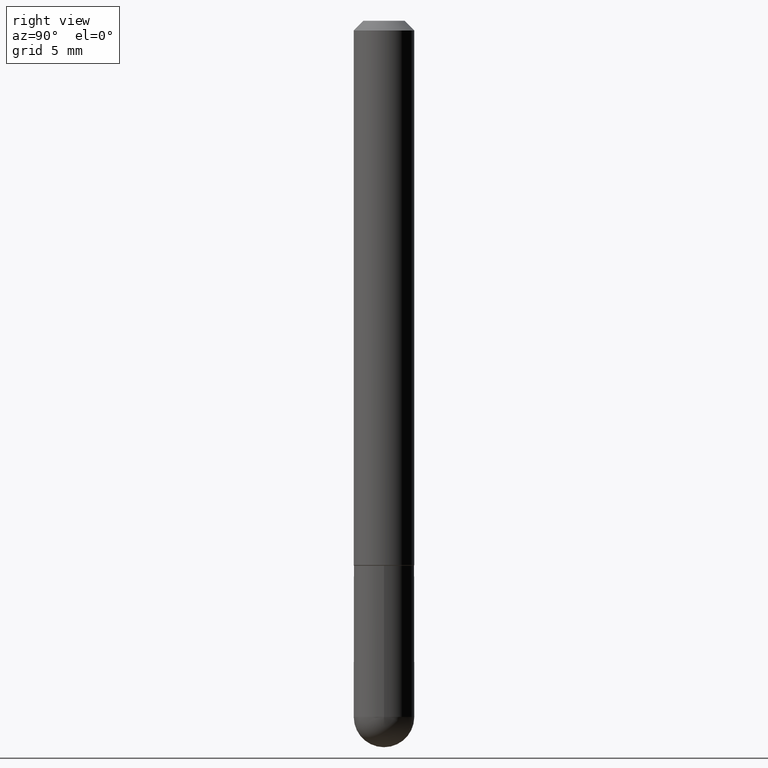
[diagram: clean part render]
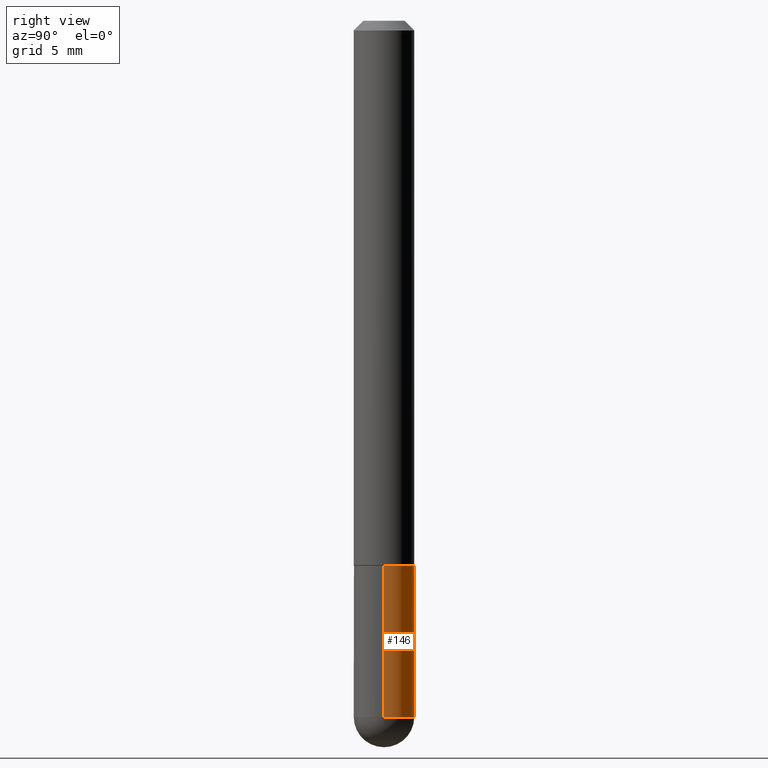
[diagram: same view with one face highlighted and labeled with its STEP entity id]
A machine part, right view. The second image highlights one B-rep face of the part: STEP entity #146.
In plain terms, the highlighted cylindrical surface (edge-blend (fillet) strip) has radius 1.5875 mm, axis along (-0, 0, 1).
Its self-contained STEP definition (entity closure, byte-faithful):
#5 = ORIENTED_EDGE ( 'NONE', *, *, #371, .T. ) ;
#8 = EDGE_CURVE ( 'NONE', #160, #316, #391, .T. ) ;
#37 = VERTEX_POINT ( 'NONE', #264 ) ;
#43 = CIRCLE ( 'NONE', #171, 0.06249999999999995143 ) ;
#68 = EDGE_CURVE ( 'NONE', #160, #37, #43, .T. ) ;
#70 = CARTESIAN_POINT ( 'NONE',  ( 2.751152406958278111E-29, -3.927916506198538435E-15, -1.124999999999999778 ) ) ;
#80 = CARTESIAN_POINT ( 'NONE',  ( 3.515361408891134418E-29, -5.019004424587023131E-15, -1.437500000000000222 ) ) ;
#85 = CARTESIAN_POINT ( 'NONE',  ( -0.06250000000000001388, -4.029371255542718167E-15, -1.124999999999999778 ) ) ;
#87 = CARTESIAN_POINT ( 'NONE',  ( 0.000000000000000000, 0.000000000000000000, 0.000000000000000000 ) ) ;
#89 = DIRECTION ( 'NONE',  ( -2.445468806185136877E-29, 3.491481338843145188E-15, 1.000000000000000000 ) ) ;
#123 = CYLINDRICAL_SURFACE ( 'NONE', #385, 0.06249999999999997918 ) ;
#132 = DIRECTION ( 'NONE',  ( -2.445468806185136597E-29, 3.491481338843145583E-15, 1.000000000000000000 ) ) ;
#133 = ORIENTED_EDGE ( 'NONE', *, *, #68, .T. ) ;
#137 = CARTESIAN_POINT ( 'NONE',  ( 3.515361408891134418E-29, -5.019004424587023131E-15, -1.437500000000000222 ) ) ;
#146 = ADVANCED_FACE ( 'NONE', ( #282 ), #123, .T. ) ;
#154 = ORIENTED_EDGE ( 'NONE', *, *, #206, .T. ) ;
#155 = DIRECTION ( 'NONE',  ( -2.445468806185136597E-29, 3.491481338843145583E-15, 1.000000000000000000 ) ) ;
#160 = VERTEX_POINT ( 'NONE', #334 ) ;
#167 = VERTEX_POINT ( 'NONE', #85 ) ;
#171 = AXIS2_PLACEMENT_3D ( 'NONE', #80, #396, #200 ) ;
#183 = DIRECTION ( 'NONE',  ( 1.000000000000000000, -6.982962677686267499E-15, 4.876176775795936353E-29 ) ) ;
#192 = CARTESIAN_POINT ( 'NONE',  ( -0.06249999999999997918, 4.440892098500624683E-16, -3.074334431409315413E-30 ) ) ;
#194 = VERTEX_POINT ( 'NONE', #308 ) ;
#195 = DIRECTION ( 'NONE',  ( -2.445468806185136877E-29, 3.491481338843145188E-15, 1.000000000000000000 ) ) ;
#200 = DIRECTION ( 'NONE',  ( 1.000000000000000000, -6.982962677686268288E-15, 0.000000000000000000 ) ) ;
#206 = EDGE_CURVE ( 'NONE', #37, #194, #363, .T. ) ;
#217 = LINE ( 'NONE', #192, #231 ) ;
#219 = AXIS2_PLACEMENT_3D ( 'NONE', #137, #155, #243 ) ;
#231 = VECTOR ( 'NONE', #89, 39.37007874015748143 ) ;
#241 = CIRCLE ( 'NONE', #295, 0.06250000000000001388 ) ;
#243 = DIRECTION ( 'NONE',  ( 1.000000000000000000, -6.982962677686268288E-15, 0.000000000000000000 ) ) ;
#264 = CARTESIAN_POINT ( 'NONE',  ( 4.364351673554256397E-16, 0.06249999999999480971, -1.437500000000000444 ) ) ;
#282 = FACE_OUTER_BOUND ( 'NONE', #405, .T. ) ;
#284 = ORIENTED_EDGE ( 'NONE', *, *, #8, .F. ) ;
#293 = EDGE_CURVE ( 'NONE', #316, #167, #241, .T. ) ;
#295 = AXIS2_PLACEMENT_3D ( 'NONE', #70, #132, #408 ) ;
#308 = CARTESIAN_POINT ( 'NONE',  ( -0.06249999999999995143, -4.029371255542718167E-15, -1.437500000000000222 ) ) ;
#313 = DIRECTION ( 'NONE',  ( -2.445468806185136597E-29, 3.491481338843145583E-15, 1.000000000000000000 ) ) ;
#316 = VERTEX_POINT ( 'NONE', #344 ) ;
#325 = CARTESIAN_POINT ( 'NONE',  ( 0.06249999999999997918, -4.364351673553915708E-16, 3.047610484872459170E-30 ) ) ;
#334 = CARTESIAN_POINT ( 'NONE',  ( 0.06249999999999995143, -4.909895632748172453E-15, -1.437500000000000222 ) ) ;
#344 = CARTESIAN_POINT ( 'NONE',  ( 0.06250000000000001388, -4.364351673553930105E-15, -1.124999999999999778 ) ) ;
#345 = ORIENTED_EDGE ( 'NONE', *, *, #293, .F. ) ;
#363 = CIRCLE ( 'NONE', #219, 0.06249999999999995143 ) ;
#371 = EDGE_CURVE ( 'NONE', #194, #167, #217, .T. ) ;
#385 = AXIS2_PLACEMENT_3D ( 'NONE', #87, #313, #183 ) ;
#391 = LINE ( 'NONE', #325, #394 ) ;
#394 = VECTOR ( 'NONE', #195, 39.37007874015748143 ) ;
#396 = DIRECTION ( 'NONE',  ( -2.445468806185136597E-29, 3.491481338843145583E-15, 1.000000000000000000 ) ) ;
#405 = EDGE_LOOP ( 'NONE', ( #154, #5, #345, #284, #133 ) ) ;
#408 = DIRECTION ( 'NONE',  ( 1.000000000000000000, -6.982962677686269077E-15, 0.000000000000000000 ) ) ;